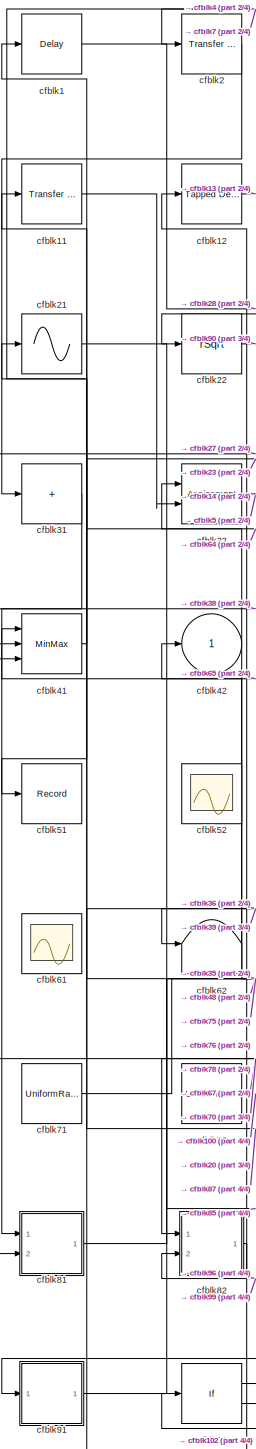
[diagram: root canvas - part 1/4, left side, full height]
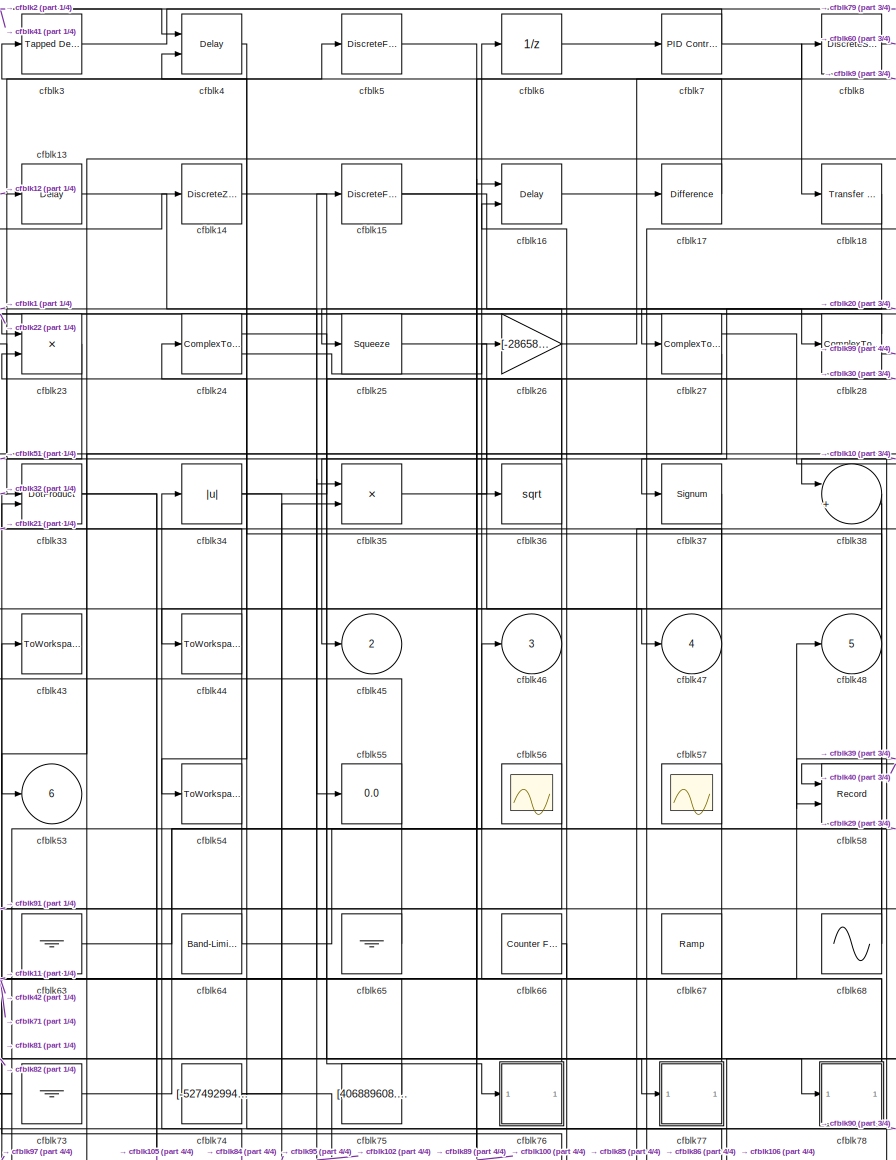
[diagram: root canvas - part 2/4, central region]
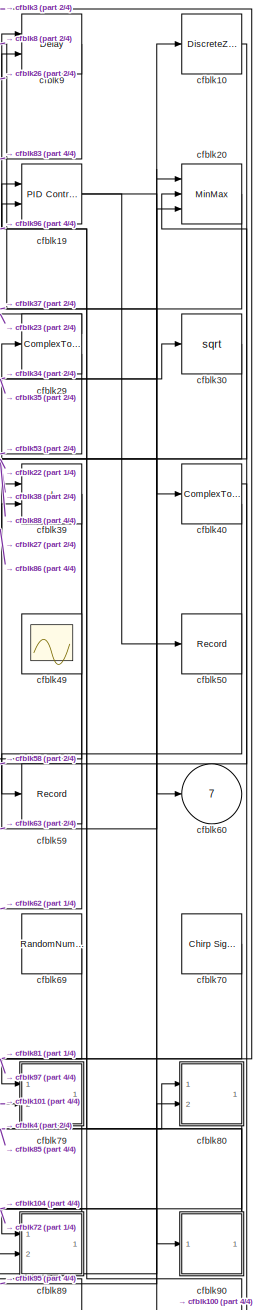
[diagram: root canvas - part 3/4, right side, full height]
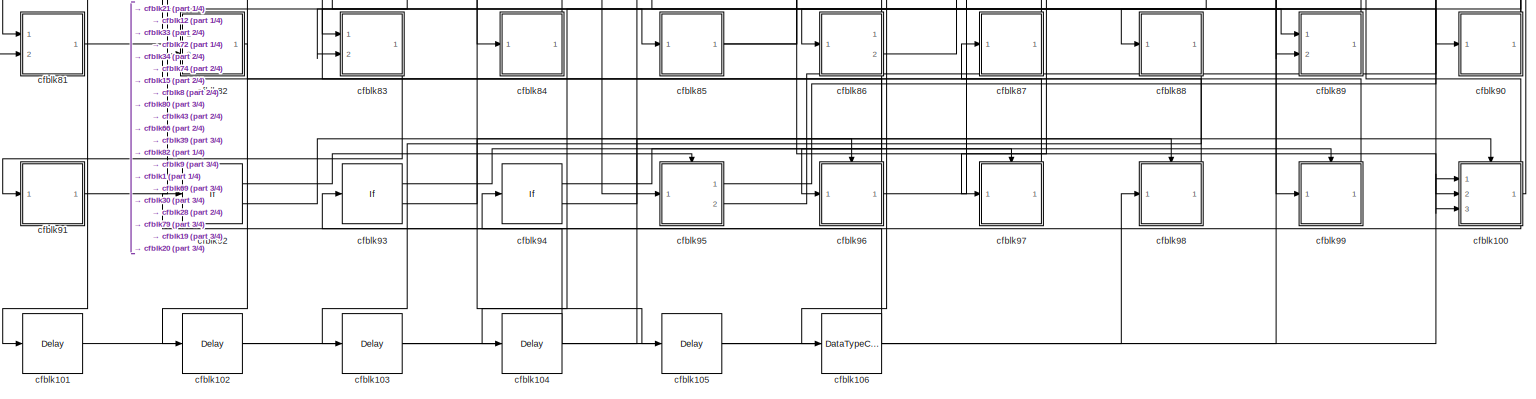
[diagram: root canvas - part 4/4, full width, bottom band]
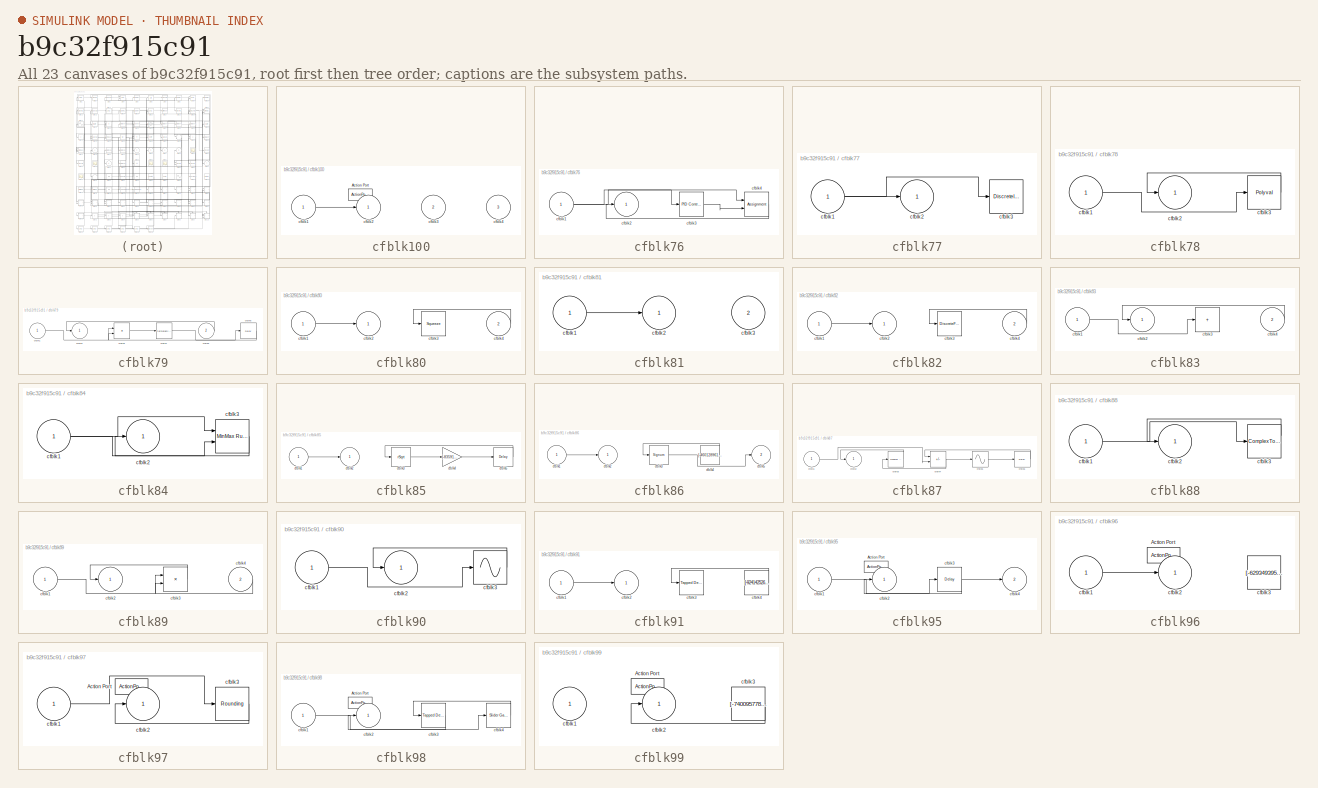
[diagram: thumbnail index - all 23 canvases of the model, root first then tree order]
MODEL slx_b9c32f915c91
KIND model
CONFIG AbsTol = auto
CONFIG EnableMultiTasking = off
CONFIG FixedStep = auto
CONFIG MaxStep = auto
CONFIG MinStep = auto
CONFIG RelTol = 1e-3
CONFIG SampleTimeConstraint = Unconstrained
CONFIG SolverName = VariableStepAuto
CONFIG StartTime = 0.0
CONFIG StopTime = 10.0
BLOCK [Delay] cfblk1
  InputPortMap = u0
  Ports = [1, 1]
  SampleTime = 1
BLOCK [DiscreteZeroPole] cfblk10
  Gain = 1
  Poles = [0 0.5]
BLOCK [SubSystem] cfblk100
  Ports = [3, 1, 0, 0, 0, 0, 0, 1]
  RequestExecContextInheritance = off
  TreatAsAtomicUnit = on
BLOCK [ActionPort] cfblk100/Action Port
  ActionPortLabel = else
BLOCK [Inport] cfblk100/cfblk1
BLOCK [Outport] cfblk100/cfblk2
BLOCK [Inport] cfblk100/cfblk3
  Port = 2
BLOCK [Inport] cfblk100/cfblk4
  Port = 3
BLOCK [Delay] cfblk101
  InputPortMap = u0
  Ports = [1, 1]
  SampleTime = 1
BLOCK [Delay] cfblk102
  InputPortMap = u0
  Ports = [1, 1]
  SampleTime = 1
BLOCK [Delay] cfblk103
  InputPortMap = u0
  Ports = [1, 1]
  SampleTime = 1
BLOCK [Delay] cfblk104
  InputPortMap = u0
  Ports = [1, 1]
  SampleTime = 1
BLOCK [Delay] cfblk105
  InputPortMap = u0
  Ports = [1, 1]
  SampleTime = 1
BLOCK [DataTypeConversion] cfblk106
  RndMeth = Floor
  SaturateOnIntegerOverflow = off
BLOCK [Reference] cfblk11  REF=simulink/Discrete/Transfer Fcn
Real Zero
  Ports = [1, 1]
  SourceBlock = simulink/Discrete/Transfer Fcn\nReal Zero
  SourceProductBaseCode = SL
  SourceType = Transfer Fcn Real Zero
BLOCK [Reference] cfblk12  REF=simulink/Discrete/Tapped Delay
  Ports = [1, 1]
  SourceBlock = simulink/Discrete/Tapped Delay
  SourceProductBaseCode = SL
  SourceType = Tapped Delay Line
BLOCK [Delay] cfblk13
  InputPortMap = u0
  Ports = [1, 1]
  SampleTime = 1
BLOCK [DiscreteZeroPole] cfblk14
  Gain = 1
  Poles = [0 0.5]
BLOCK [DiscreteFir] cfblk15
  InputPortMap = u0
  OutputPortMap = o0
  Ports = [1, 1]
  SampleTime = 1
BLOCK [Delay] cfblk16
  DelayLengthSource = Input port
  InputPortMap = u0,p1
  Ports = [2, 1]
  SampleTime = 1
BLOCK [Reference] cfblk17  REF=simulink/Discrete/Difference
  Ports = [1, 1]
  SourceBlock = simulink/Discrete/Difference
  SourceProductBaseCode = SL
  SourceType = Difference
BLOCK [Reference] cfblk18  REF=simulink/Discrete/Transfer Fcn
Lead or Lag
  Ports = [1, 1]
  SourceBlock = simulink/Discrete/Transfer Fcn\nLead or Lag
  SourceProductBaseCode = SL
  SourceType = Lead or Lag Compensator
BLOCK [Reference] cfblk19  REF=slpidlib/PID Controller (2DOF)
  Ports = [2, 1]
  SourceBlock = slpidlib/PID Controller (2DOF)
  SourceProductBaseCode = SL
  SourceType = PID 2dof
BLOCK [Reference] cfblk2  REF=simulink/Discrete/Transfer Fcn
Real Zero
  Ports = [1, 1]
  SourceBlock = simulink/Discrete/Transfer Fcn\nReal Zero
  SourceProductBaseCode = SL
  SourceType = Transfer Fcn Real Zero
BLOCK [MinMax] cfblk20
  Inputs = 3
  Ports = [3, 1]
BLOCK [Sin] cfblk21
  Ports = [1, 1]
  SampleTime = 0
  TimeSource = Use external signal
BLOCK [Sqrt] cfblk22
  AlgorithmType = Newton-Raphson
  Operator = rSqrt
BLOCK [Product] cfblk23
  Ports = [2, 1]
BLOCK [ComplexToRealImag] cfblk24
  Ports = [1, 2]
BLOCK [Squeeze] cfblk25
BLOCK [Gain] cfblk26
  Gain = [-28658814.291237]
BLOCK [ComplexToRealImag] cfblk27
  Ports = [1, 2]
BLOCK [ComplexToMagnitudeAngle] cfblk28
  Ports = [1, 2]
BLOCK [ComplexToMagnitudeAngle] cfblk29
  Ports = [1, 2]
BLOCK [Reference] cfblk3  REF=simulink/Discrete/Tapped Delay
  Ports = [1, 1]
  SourceBlock = simulink/Discrete/Tapped Delay
  SourceProductBaseCode = SL
  SourceType = Tapped Delay Line
BLOCK [Sqrt] cfblk30
BLOCK [Sum] cfblk31
  IconShape = rectangular
  Inputs = +
  Ports = [1, 1]
BLOCK [Assignment] cfblk32
  DiagnosticForDimensions = Warning
  IndexOptions = Index vector (dialog)
  Indices = 1
  OutputSizes = 1
  Ports = [2, 1]
BLOCK [DotProduct] cfblk33
  OutDataTypeStr = Inherit: Inherit via internal rule
BLOCK [Abs] cfblk34
  SaturateOnIntegerOverflow = off
BLOCK [Product] cfblk35
  Inputs = **
  Ports = [2, 1]
BLOCK [Sqrt] cfblk36
BLOCK [Signum] cfblk37
BLOCK [Sum] cfblk38
  Inputs = |++
  Ports = [2, 1]
BLOCK [Sum] cfblk39
  IconShape = rectangular
  Ports = [2, 1]
BLOCK [Delay] cfblk4
  DelayLengthSource = Input port
  InputPortMap = u0,p1
  Ports = [2, 1]
  SampleTime = 1
BLOCK [ComplexToMagnitudeAngle] cfblk40
  Ports = [1, 2]
BLOCK [MinMax] cfblk41
  Inputs = 3
  Ports = [3, 1]
BLOCK [Outport] cfblk42
BLOCK [ToWorkspace] cfblk43
  FixptAsFi = on
  MaxDataPoints = inf
  Ports = [1]
  SampleTime = -1
  SaveFormat = Timeseries
  VariableName = hzjstlo
BLOCK [ToWorkspace] cfblk44
  FixptAsFi = on
  MaxDataPoints = inf
  Ports = [1]
  SampleTime = -1
  SaveFormat = Timeseries
  VariableName = aaxslds
BLOCK [Outport] cfblk45
  Port = 2
BLOCK [Outport] cfblk46
  Port = 3
BLOCK [Outport] cfblk47
  Port = 4
BLOCK [Outport] cfblk48
  Port = 5
BLOCK [Scope] cfblk49
  Floating = on
  NumInputPorts = 1
  Ports = []
BLOCK [DiscreteFilter] cfblk5
  InputPortMap = u0
  Ports = [1, 1]
  SampleTime = 1
BLOCK [Record] cfblk50
  FileSettingsInternal = {"entries":[{"content":{"excelSettings":{"content":{},"type":"Streamout.ExcelSettings"}},"type":"Streamout.FileSettingStorage","uuid":"b6eb8a9c-eb1a-4261-9b81-98630c569aa1"}],"packageUris":["http://schema.mathworks.com/mf0/streamout_blocks/R2020a"],"version":"1.0"}
  Ports = [1]
  SignalsInternal = {"entries":[{"content":{"signals":[{"content":{"blockPath":["sampleModel275/cfblk50"],"channel":[],"dimensions":[1],"domain":"sampleModel275/cfblk50","lineColor":"#fe330a","plots":[1],"port":1,"sid":[""],"signalID":11495,"signalName":"cfblk19"},"type":"RecordBlkView.Signal","uuid":"71f57f67-cb61-4adf-8332-56198fc03cd2"}]},"type":"RecordBlkView.InputSignals","uuid":"8c8ca269-4e9b-46e2-88c4-c1c2e234...<+98ch>
  VisualizationBindings = {"sparklinesplugin":{"info":[{"bindingParametersList":[],"subplotID":1}]}}
BLOCK [Record] cfblk51
  FileSettingsInternal = {"entries":[{"content":{"excelSettings":{"content":{},"type":"Streamout.ExcelSettings"}},"type":"Streamout.FileSettingStorage","uuid":"b407e88e-82d7-4c58-97ca-e59b3c794d53"}],"packageUris":["http://schema.mathworks.com/mf0/streamout_blocks/R2020a"],"version":"1.0"}
  Ports = [1]
  SignalsInternal = {"entries":[{"content":{"signals":[{"content":{"blockPath":["sampleModel275/cfblk51"],"channel":[],"dimensions":[1],"domain":"sampleModel275/cfblk51","lineColor":"#22b573","plots":[1],"port":1,"sid":[""],"signalID":11499,"signalName":"cfblk23"},"type":"RecordBlkView.Signal","uuid":"ec15170a-8382-47db-b36d-1ce41cc8f111"}]},"type":"RecordBlkView.InputSignals","uuid":"f86542a5-57eb-4307-8b55-610ba7e4...<+98ch>
  VisualizationBindings = {"sparklinesplugin":{"info":[{"bindingParametersList":[],"subplotID":1}]}}
BLOCK [Scope] cfblk52
  Floating = on
  NumInputPorts = 1
  Ports = []
BLOCK [Outport] cfblk53
  Port = 6
BLOCK [ToWorkspace] cfblk54
  FixptAsFi = on
  MaxDataPoints = inf
  Ports = [1]
  SampleTime = -1
  SaveFormat = Timeseries
  VariableName = tlpzwrb
BLOCK [Display] cfblk55
  Decimation = 1
  Ports = [1]
BLOCK [Scope] cfblk56
  Floating = on
  NumInputPorts = 1
  Ports = []
BLOCK [Scope] cfblk57
  Floating = on
  NumInputPorts = 1
  Ports = []
BLOCK [Record] cfblk58
  CompatibilityTag = XY
  FileSettingsInternal = {"entries":[{"content":{"excelSettings":{"content":{},"type":"Streamout.ExcelSettings"}},"type":"Streamout.FileSettingStorage","uuid":"6438ada9-0782-4b46-9d9c-291e916b62cd"}],"packageUris":["http://schema.mathworks.com/mf0/streamout_blocks/R2020a"],"version":"1.0"}
  Layout = [1 1]
  Ports = [2]
  SignalsInternal = {"entries":[{"content":{"signals":[{"content":{"blockPath":["sampleModel275/cfblk58"],"channel":[],"dimensions":[1],"domain":"sampleModel275/cfblk58","lineColor":"#a2142f","plots":[1],"port":1,"sid":[""],"signalID":11503,"signalName":"cfblk40:1"},"type":"RecordBlkView.Signal","uuid":"d4910d3c-664b-4734-92f5-20726efe3d51"},{"content":{"blockPath":["sampleModel275/cfblk58"],"channel":[],"dimensions"...<+387ch>
  VisualizationBindings = {"xyplotplugin":{"info":[{"series":[{"bindingParametersList":[{"parameter":"X-Axis","signalID":11503,"signalName":"cfblk40:1"},{"parameter":"Y-Axis","signalID":11507,"signalName":"cfblk39"}],"seriesID":64902}],"subplotID":1}]}}
BLOCK [Record] cfblk59
  FileSettingsInternal = {"entries":[{"content":{"excelSettings":{"content":{},"type":"Streamout.ExcelSettings"}},"type":"Streamout.FileSettingStorage","uuid":"0cc106a6-c31f-4d23-977d-6d8b87a6092b"}],"packageUris":["http://schema.mathworks.com/mf0/streamout_blocks/R2020a"],"version":"1.0"}
  Ports = [1]
  SignalsInternal = {"entries":[{"content":{"signals":[{"content":{"blockPath":["sampleModel275/cfblk59"],"channel":[],"dimensions":[1],"domain":"sampleModel275/cfblk59","lineColor":"#edb120","plots":[1],"port":1,"sid":[""],"signalID":11511,"signalName":"cfblk40:2"},"type":"RecordBlkView.Signal","uuid":"fdcc7cc7-3bfd-4a9a-aeaa-3b1704c8eba9"}]},"type":"RecordBlkView.InputSignals","uuid":"85a8b503-552f-41f1-b276-6a567c...<+100ch>
  VisualizationBindings = {"sparklinesplugin":{"info":[{"bindingParametersList":[],"subplotID":1}]}}
BLOCK [UnitDelay] cfblk6
  HasFrameUpgradeWarning = on
BLOCK [Outport] cfblk60
  Port = 7
BLOCK [Scope] cfblk61
  Floating = on
  NumInputPorts = 1
  Ports = []
BLOCK [Terminator] cfblk62
BLOCK [Ground] cfblk63
BLOCK [Reference] cfblk64  REF=simulink/Sources/Band-Limited
White Noise
  Ports = [0, 1]
  SourceBlock = simulink/Sources/Band-Limited\nWhite Noise
  SourceProductBaseCode = SL
  SourceType = Band-Limited White Noise.
BLOCK [Ground] cfblk65
BLOCK [Reference] cfblk66  REF=simulink/Sources/Counter
Free-Running
  Ports = [0, 1]
  SourceBlock = simulink/Sources/Counter\nFree-Running
  SourceProductBaseCode = SL
  SourceType = Counter Free-Running
BLOCK [Reference] cfblk67  REF=simulink/Sources/Ramp
  Ports = [0, 1]
  SourceBlock = simulink/Sources/Ramp
  SourceProductBaseCode = SL
  SourceType = Ramp
BLOCK [Sin] cfblk68
  Amplitude = [-991310042.468495]
  Bias = [911881758.142677]
  Ports = [0, 1]
  SampleTime = 0
BLOCK [RandomNumber] cfblk69
  Mean = [-38034.714186]
  SampleTime = 0.1
  Seed = [711987577.000000]
  Variance = [20282.555075]
BLOCK [Reference] cfblk7  REF=slpidlib/PID Controller
  Ports = [1, 1]
  SourceBlock = slpidlib/PID Controller
  SourceProductBaseCode = SL
  SourceType = PID 1dof
BLOCK [Reference] cfblk70  REF=simulink/Sources/Chirp Signal
  Ports = [0, 1]
  SourceBlock = simulink/Sources/Chirp Signal
  SourceProductBaseCode = SL
  SourceType = chirp
BLOCK [UniformRandomNumber] cfblk71
  Maximum = [7342485115.905728]
  Minimum = [-1039848184.369478]
  SampleTime = 0.1
  Seed = [43463213.000000]
BLOCK [UniformRandomNumber] cfblk72
  Maximum = [4927057979.813775]
  Minimum = [-2028484056.447849]
  SampleTime = 0.1
  Seed = [54197265.000000]
BLOCK [Ground] cfblk73
BLOCK [Constant] cfblk74
  SampleTime = 1
  Value = [-527492994.150068]
BLOCK [Constant] cfblk75
  SampleTime = 1
  Value = [406889608.551256]
BLOCK [SubSystem] cfblk76
  Ports = [1, 1]
  RequestExecContextInheritance = off
BLOCK [Inport] cfblk76/cfblk1
BLOCK [Outport] cfblk76/cfblk2
BLOCK [Reference] cfblk76/cfblk3  REF=slpidlib/PID Controller
  Ports = [1, 1]
  SourceBlock = slpidlib/PID Controller
  SourceProductBaseCode = SL
  SourceType = PID 1dof
BLOCK [Assignment] cfblk76/cfblk4
  DiagnosticForDimensions = Warning
  IndexOptions = Index vector (dialog)
  Indices = 1
  OutputSizes = 1
  Ports = [2, 1]
BLOCK [SubSystem] cfblk77
  Ports = [1, 1]
  RequestExecContextInheritance = off
BLOCK [Inport] cfblk77/cfblk1
BLOCK [Outport] cfblk77/cfblk2
BLOCK [DiscreteIntegrator] cfblk77/cfblk3
  ICPrevOutput = DiscIntNeverNeededParam
  ICPrevScaledInput = DiscIntNeverNeededParam
  InitialConditionSetting = Auto
  Ports = [1, 1]
BLOCK [SubSystem] cfblk78
  Ports = [1, 1]
  RequestExecContextInheritance = off
BLOCK [Inport] cfblk78/cfblk1
BLOCK [Outport] cfblk78/cfblk2
BLOCK [Polyval] cfblk78/cfblk3
  Coefs = [ +2.081618890e-019, -1.441693666e-014, +4.719686976e-010, -8.536869453e-006, +1.621573104e-001, -8.087801117e+001 ]
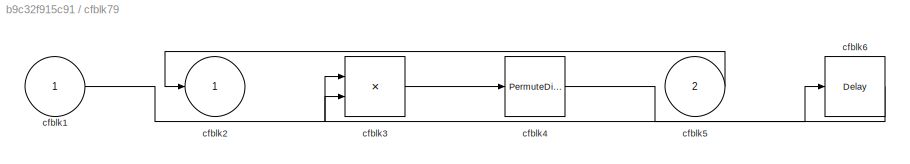
BLOCK [SubSystem] cfblk79
  Ports = [2, 1]
  RequestExecContextInheritance = off
BLOCK [Inport] cfblk79/cfblk1
BLOCK [Outport] cfblk79/cfblk2
BLOCK [Product] cfblk79/cfblk3
  Ports = [2, 1]
BLOCK [PermuteDimensions] cfblk79/cfblk4
BLOCK [Inport] cfblk79/cfblk5
  Port = 2
BLOCK [Delay] cfblk79/cfblk6
  InputPortMap = u0
  Ports = [1, 1]
  SampleTime = 1
BLOCK [DiscreteStateSpace] cfblk8
BLOCK [SubSystem] cfblk80
  Ports = [2, 1]
  RequestExecContextInheritance = off
BLOCK [Inport] cfblk80/cfblk1
BLOCK [Outport] cfblk80/cfblk2
BLOCK [Squeeze] cfblk80/cfblk3
BLOCK [Inport] cfblk80/cfblk4
  Port = 2
BLOCK [SubSystem] cfblk81
  Ports = [2, 1]
  RequestExecContextInheritance = off
BLOCK [Inport] cfblk81/cfblk1
BLOCK [Outport] cfblk81/cfblk2
BLOCK [Inport] cfblk81/cfblk3
  Port = 2
BLOCK [SubSystem] cfblk82
  Ports = [2, 1]
  RequestExecContextInheritance = off
BLOCK [Inport] cfblk82/cfblk1
BLOCK [Outport] cfblk82/cfblk2
BLOCK [DiscreteFilter] cfblk82/cfblk3
  InputPortMap = u0
  Ports = [1, 1]
  SampleTime = 1
BLOCK [Inport] cfblk82/cfblk4
  Port = 2
BLOCK [SubSystem] cfblk83
  Ports = [2, 1]
  RequestExecContextInheritance = off
BLOCK [Inport] cfblk83/cfblk1
BLOCK [Outport] cfblk83/cfblk2
BLOCK [Sum] cfblk83/cfblk3
  IconShape = rectangular
  Inputs = +
  Ports = [1, 1]
BLOCK [Inport] cfblk83/cfblk4
  Port = 2
BLOCK [SubSystem] cfblk84
  Ports = [1, 1]
  RequestExecContextInheritance = off
BLOCK [Inport] cfblk84/cfblk1
BLOCK [Outport] cfblk84/cfblk2
BLOCK [Reference] cfblk84/cfblk3  REF=simulink/Math
Operations/MinMax
Running
Resettable
  Ports = [2, 1]
  SourceBlock = simulink/Math\nOperations/MinMax\nRunning\nResettable
  SourceProductBaseCode = SL
  SourceType = MinMax Running Resettable
BLOCK [SubSystem] cfblk85
  Ports = [1, 1]
  RequestExecContextInheritance = off
BLOCK [Inport] cfblk85/cfblk1
BLOCK [Outport] cfblk85/cfblk2
BLOCK [Sqrt] cfblk85/cfblk3
  AlgorithmType = Newton-Raphson
  Operator = rSqrt
BLOCK [Gain] cfblk85/cfblk4
  Gain = [-835917633.419999]
BLOCK [Delay] cfblk85/cfblk5
  InputPortMap = u0
  Ports = [1, 1]
  SampleTime = 1
BLOCK [SubSystem] cfblk86
  Ports = [1, 2]
  RequestExecContextInheritance = off
BLOCK [Inport] cfblk86/cfblk1
BLOCK [Outport] cfblk86/cfblk2
BLOCK [Signum] cfblk86/cfblk3
BLOCK [Constant] cfblk86/cfblk4
  SampleTime = 1
  Value = [-460128961.317315]
BLOCK [Outport] cfblk86/cfblk5
  Port = 2
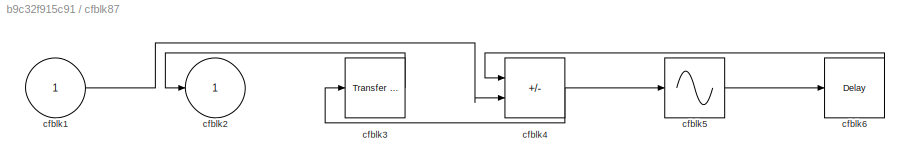
BLOCK [SubSystem] cfblk87
  Ports = [1, 1]
  RequestExecContextInheritance = off
BLOCK [Inport] cfblk87/cfblk1
BLOCK [Outport] cfblk87/cfblk2
BLOCK [Reference] cfblk87/cfblk3  REF=simulink/Discrete/Transfer Fcn
First Order
  Ports = [1, 1]
  SourceBlock = simulink/Discrete/Transfer Fcn\nFirst Order
  SourceProductBaseCode = SL
  SourceType = First Order Transfer Fcn
BLOCK [Sum] cfblk87/cfblk4
  IconShape = rectangular
  Inputs = +-
  Ports = [2, 1]
BLOCK [Sin] cfblk87/cfblk5
  Ports = [1, 1]
  SampleTime = 0
  TimeSource = Use external signal
BLOCK [Delay] cfblk87/cfblk6
  InputPortMap = u0
  Ports = [1, 1]
  SampleTime = 1
BLOCK [SubSystem] cfblk88
  Ports = [1, 1]
  RequestExecContextInheritance = off
BLOCK [Inport] cfblk88/cfblk1
BLOCK [Outport] cfblk88/cfblk2
BLOCK [ComplexToRealImag] cfblk88/cfblk3
  Ports = [1, 2]
BLOCK [SubSystem] cfblk89
  Ports = [2, 1]
  RequestExecContextInheritance = off
BLOCK [Inport] cfblk89/cfblk1
BLOCK [Outport] cfblk89/cfblk2
BLOCK [Product] cfblk89/cfblk3
  Ports = [2, 1]
BLOCK [Inport] cfblk89/cfblk4
  Port = 2
BLOCK [Delay] cfblk9
  DelayLengthSource = Input port
  InputPortMap = u0,p1
  Ports = [2, 1]
  SampleTime = 1
BLOCK [SubSystem] cfblk90
  Ports = [1, 1]
  RequestExecContextInheritance = off
BLOCK [Inport] cfblk90/cfblk1
BLOCK [Outport] cfblk90/cfblk2
BLOCK [Sin] cfblk90/cfblk3
  Ports = [1, 1]
  SampleTime = 0
  TimeSource = Use external signal
BLOCK [SubSystem] cfblk91
  Ports = [1, 1]
  RequestExecContextInheritance = off
BLOCK [Inport] cfblk91/cfblk1
BLOCK [Outport] cfblk91/cfblk2
BLOCK [Reference] cfblk91/cfblk3  REF=simulink/Discrete/Tapped Delay
  Ports = [1, 1]
  SourceBlock = simulink/Discrete/Tapped Delay
  SourceProductBaseCode = SL
  SourceType = Tapped Delay Line
BLOCK [Constant] cfblk91/cfblk4
  SampleTime = 1
  Value = [-924142526.306234]
BLOCK [If] cfblk92
  IfExpression = u1 >= 0
  Ports = [1, 2]
  SampleTime = 1
BLOCK [If] cfblk93
  IfExpression = u1 >= 0
  Ports = [1, 2]
  SampleTime = 1
BLOCK [If] cfblk94
  IfExpression = u1 >= 0
  Ports = [1, 2]
  SampleTime = 1
BLOCK [SubSystem] cfblk95
  Ports = [1, 2, 0, 0, 0, 0, 0, 1]
  RequestExecContextInheritance = off
  TreatAsAtomicUnit = on
BLOCK [ActionPort] cfblk95/Action Port
  ActionPortLabel = if(u1 >= 0)
BLOCK [Inport] cfblk95/cfblk1
BLOCK [Outport] cfblk95/cfblk2
BLOCK [Delay] cfblk95/cfblk3
  InputPortMap = u0
  Ports = [1, 1]
BLOCK [Outport] cfblk95/cfblk4
  Port = 2
BLOCK [SubSystem] cfblk96
  Ports = [1, 1, 0, 0, 0, 0, 0, 1]
  RequestExecContextInheritance = off
  TreatAsAtomicUnit = on
BLOCK [ActionPort] cfblk96/Action Port
  ActionPortLabel = else
BLOCK [Inport] cfblk96/cfblk1
BLOCK [Outport] cfblk96/cfblk2
BLOCK [Constant] cfblk96/cfblk3
  SampleTime = 1
  Value = [-629349395.629615]
BLOCK [SubSystem] cfblk97
  Ports = [1, 1, 0, 0, 0, 0, 0, 1]
  RequestExecContextInheritance = off
  TreatAsAtomicUnit = on
BLOCK [ActionPort] cfblk97/Action Port
  ActionPortLabel = if(u1 >= 0)
BLOCK [Inport] cfblk97/cfblk1
BLOCK [Outport] cfblk97/cfblk2
BLOCK [Rounding] cfblk97/cfblk3
BLOCK [SubSystem] cfblk98
  Ports = [1, 1, 0, 0, 0, 0, 0, 1]
  RequestExecContextInheritance = off
  TreatAsAtomicUnit = on
BLOCK [ActionPort] cfblk98/Action Port
  ActionPortLabel = else
BLOCK [Inport] cfblk98/cfblk1
BLOCK [Outport] cfblk98/cfblk2
BLOCK [Reference] cfblk98/cfblk3  REF=simulink/Discrete/Tapped Delay
  Ports = [1, 1]
  SourceBlock = simulink/Discrete/Tapped Delay
  SourceProductBaseCode = SL
  SourceType = Tapped Delay Line
BLOCK [Reference] cfblk98/cfblk4  REF=simulink/Math
Operations/Slider
Gain
  Ports = [1, 1]
  SourceBlock = simulink/Math\nOperations/Slider\nGain
  SourceProductBaseCode = SL
  SourceType = Slider Gain
BLOCK [SubSystem] cfblk99
  Ports = [1, 1, 0, 0, 0, 0, 0, 1]
  RequestExecContextInheritance = off
  TreatAsAtomicUnit = on
BLOCK [ActionPort] cfblk99/Action Port
  ActionPortLabel = if(u1 >= 0)
BLOCK [Inport] cfblk99/cfblk1
BLOCK [Outport] cfblk99/cfblk2
BLOCK [Constant] cfblk99/cfblk3
  SampleTime = 1
  Value = [-740095778.448201]
LINE cfblk100/cfblk1:1 -> cfblk100/cfblk2:1
NET cfblk100:1 -> cfblk19:1, cfblk20:2, cfblk93:1
LINE cfblk101:1 -> cfblk79:2
LINE cfblk102:1 -> cfblk15:1
LINE cfblk103:1 -> cfblk100:1
LINE cfblk104:1 -> cfblk92:1
LINE cfblk105:1 -> cfblk98:1
LINE cfblk106:1 -> cfblk94:1
LINE cfblk10:1 -> cfblk38:1
LINE cfblk11:1 -> cfblk32:2
LINE cfblk12:1 -> cfblk13:1
LINE cfblk13:1 -> cfblk55:1
LINE cfblk14:1 -> cfblk77:1
NET cfblk15:1 -> cfblk100:3, cfblk89:2
LINE cfblk16:1 -> cfblk17:1
LINE cfblk17:1 -> cfblk3:1
LINE cfblk18:1 -> cfblk27:1
NET cfblk19:1 -> cfblk40:1, cfblk50:1
LINE cfblk1:1 -> cfblk28:1
LINE cfblk20:1 -> cfblk37:1
LINE cfblk21:1 -> cfblk85:1
LINE cfblk22:1 -> cfblk90:1
LINE cfblk23:1 -> cfblk51:1
LINE cfblk24:1 -> cfblk76:1
LINE cfblk24:2 -> cfblk26:1
LINE cfblk25:1 -> cfblk47:1
NET cfblk26:1 -> cfblk25:1, cfblk45:1, cfblk9:2
LINE cfblk27:1 -> cfblk39:1
LINE cfblk27:2 -> cfblk41:3
LINE cfblk28:1 -> cfblk22:1
LINE cfblk28:2 -> cfblk99:1
LINE cfblk29:1 -> cfblk23:1
LINE cfblk29:2 -> cfblk53:1
LINE cfblk2:1 -> cfblk31:1
LINE cfblk30:1 -> cfblk88:1
LINE cfblk31:1 -> cfblk81:1
NET cfblk32:1 -> cfblk14:1, cfblk5:1
NET cfblk33:1 -> cfblk105:1, cfblk84:1
NET cfblk34:1 -> cfblk30:1, cfblk95:1
LINE cfblk35:1 -> cfblk10:1
NET cfblk36:1 -> cfblk23:2, cfblk91:1
LINE cfblk37:1 -> cfblk44:1
LINE cfblk38:1 -> cfblk41:2
NET cfblk39:1 -> cfblk58:2, cfblk62:1
LINE cfblk3:1 -> cfblk79:1
LINE cfblk40:1 -> cfblk58:1
LINE cfblk40:2 -> cfblk59:1
LINE cfblk41:1 -> cfblk4:1
LINE cfblk4:1 -> cfblk54:1
LINE cfblk5:1 -> cfblk78:1
LINE cfblk63:1 -> cfblk29:1
NET cfblk64:1 -> cfblk16:1, cfblk21:1
LINE cfblk65:1 -> cfblk41:1
LINE cfblk66:1 -> cfblk106:1
NET cfblk67:1 -> cfblk33:2, cfblk82:1
NET cfblk68:1 -> cfblk24:1, cfblk38:2
LINE cfblk69:1 -> cfblk97:1
LINE cfblk6:1 -> cfblk7:1
LINE cfblk70:1 -> cfblk81:2
LINE cfblk71:1 -> cfblk48:1
NET cfblk72:1 -> cfblk100:2, cfblk20:3
LINE cfblk73:1 -> cfblk6:1
NET cfblk74:1 -> cfblk35:2, cfblk89:1
LINE cfblk75:1 -> cfblk11:1
NET cfblk76/cfblk1:1 -> cfblk76/cfblk3:1, cfblk76/cfblk4:1
LINE cfblk76/cfblk3:1 -> cfblk76/cfblk4:2
LINE cfblk76/cfblk4:1 -> cfblk76/cfblk2:1
LINE cfblk76:1 -> cfblk32:1
NET cfblk77/cfblk1:1 -> cfblk77/cfblk2:1, cfblk77/cfblk3:1
LINE cfblk77:1 -> cfblk46:1
LINE cfblk78/cfblk1:1 -> cfblk78/cfblk3:1
LINE cfblk78/cfblk3:1 -> cfblk78/cfblk2:1
NET cfblk78:1 -> cfblk16:2, cfblk42:1
LINE cfblk79/cfblk1:1 -> cfblk79/cfblk3:1
LINE cfblk79/cfblk3:1 -> cfblk79/cfblk4:1
LINE cfblk79/cfblk4:1 -> cfblk79/cfblk6:1
LINE cfblk79/cfblk5:1 -> cfblk79/cfblk2:1
LINE cfblk79/cfblk6:1 -> cfblk79/cfblk3:2
LINE cfblk79:1 -> cfblk83:2
NET cfblk7:1 -> cfblk18:1, cfblk2:1
LINE cfblk80/cfblk1:1 -> cfblk80/cfblk2:1
LINE cfblk80/cfblk4:1 -> cfblk80/cfblk3:1
LINE cfblk80:1 -> cfblk104:1
LINE cfblk81/cfblk1:1 -> cfblk81/cfblk2:1
LINE cfblk81:1 -> cfblk36:1
LINE cfblk82/cfblk1:1 -> cfblk82/cfblk2:1
LINE cfblk82/cfblk4:1 -> cfblk82/cfblk3:1
LINE cfblk82:1 -> cfblk102:1
LINE cfblk83/cfblk1:1 -> cfblk83/cfblk3:1
LINE cfblk83/cfblk4:1 -> cfblk83/cfblk2:1
LINE cfblk83:1 -> cfblk101:1
NET cfblk84/cfblk1:1 -> cfblk84/cfblk3:1, cfblk84/cfblk3:2
LINE cfblk84/cfblk3:1 -> cfblk84/cfblk2:1
LINE cfblk84:1 -> cfblk34:1
LINE cfblk85/cfblk1:1 -> cfblk85/cfblk2:1
LINE cfblk85/cfblk3:1 -> cfblk85/cfblk4:1
LINE cfblk85/cfblk4:1 -> cfblk85/cfblk5:1
LINE cfblk85/cfblk5:1 -> cfblk85/cfblk3:1
NET cfblk85:1 -> cfblk80:1, cfblk8:1
LINE cfblk86/cfblk1:1 -> cfblk86/cfblk2:1
LINE cfblk86/cfblk3:1 -> cfblk86/cfblk5:1
LINE cfblk86/cfblk4:1 -> cfblk86/cfblk3:1
LINE cfblk86:1 -> cfblk43:1
NET cfblk86:2 -> cfblk39:2, cfblk96:1
LINE cfblk87/cfblk1:1 -> cfblk87/cfblk4:2
LINE cfblk87/cfblk3:1 -> cfblk87/cfblk2:1
NET cfblk87/cfblk4:1 -> cfblk87/cfblk3:1, cfblk87/cfblk5:1
LINE cfblk87/cfblk5:1 -> cfblk87/cfblk6:1
LINE cfblk87/cfblk6:1 -> cfblk87/cfblk4:1
LINE cfblk87:1 -> cfblk1:1
LINE cfblk88/cfblk1:1 -> cfblk88/cfblk3:1
LINE cfblk88/cfblk3:1 -> cfblk88/cfblk2:1
LINE cfblk88:1 -> cfblk103:1
LINE cfblk89/cfblk1:1 -> cfblk89/cfblk3:1
LINE cfblk89/cfblk3:1 -> cfblk89/cfblk2:1
LINE cfblk89/cfblk4:1 -> cfblk89/cfblk3:2
LINE cfblk89:1 -> cfblk86:1
LINE cfblk8:1 -> cfblk60:1
LINE cfblk90/cfblk1:1 -> cfblk90/cfblk3:1
LINE cfblk90/cfblk3:1 -> cfblk90/cfblk2:1
NET cfblk90:1 -> cfblk19:2, cfblk4:2
LINE cfblk91/cfblk1:1 -> cfblk91/cfblk2:1
LINE cfblk91/cfblk4:1 -> cfblk91/cfblk3:1
LINE cfblk91:1 -> cfblk35:1
LINE cfblk92:1 -> cfblk95:ifaction
LINE cfblk92:2 -> cfblk96:ifaction
LINE cfblk93:1 -> cfblk97:ifaction
LINE cfblk93:2 -> cfblk98:ifaction
LINE cfblk94:1 -> cfblk99:ifaction
LINE cfblk94:2 -> cfblk100:ifaction
LINE cfblk95/cfblk1:1 -> cfblk95/cfblk3:1
NET cfblk95/cfblk3:1 -> cfblk95/cfblk2:1, cfblk95/cfblk4:1
LINE cfblk95:1 -> cfblk80:2
LINE cfblk95:2 -> cfblk20:1
LINE cfblk96/cfblk1:1 -> cfblk96/cfblk2:1
NET cfblk96:1 -> cfblk82:2, cfblk9:1
LINE cfblk97/cfblk1:1 -> cfblk97/cfblk3:1
LINE cfblk97/cfblk3:1 -> cfblk97/cfblk2:1
LINE cfblk97:1 -> cfblk33:1
LINE cfblk98/cfblk1:1 -> cfblk98/cfblk4:1
LINE cfblk98/cfblk3:1 -> cfblk98/cfblk2:1
LINE cfblk98/cfblk4:1 -> cfblk98/cfblk3:1
LINE cfblk98:1 -> cfblk87:1
LINE cfblk99/cfblk3:1 -> cfblk99/cfblk2:1
LINE cfblk99:1 -> cfblk12:1
LINE cfblk9:1 -> cfblk83:1
note: NET lines group one-source signal fan-out (src -> all destinations, sorted); 1:1 wires keep LINE
